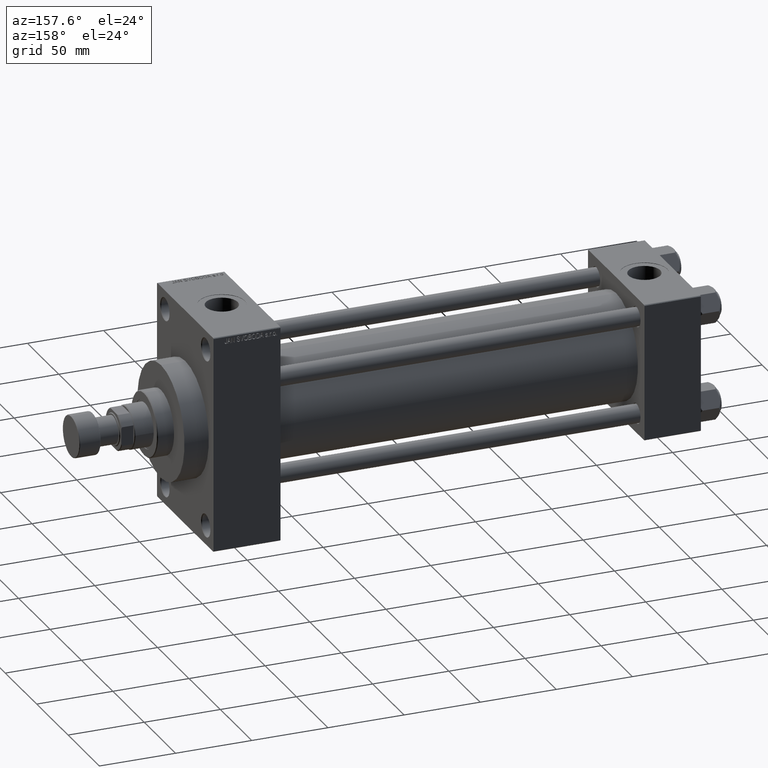
[diagram: clean part render]
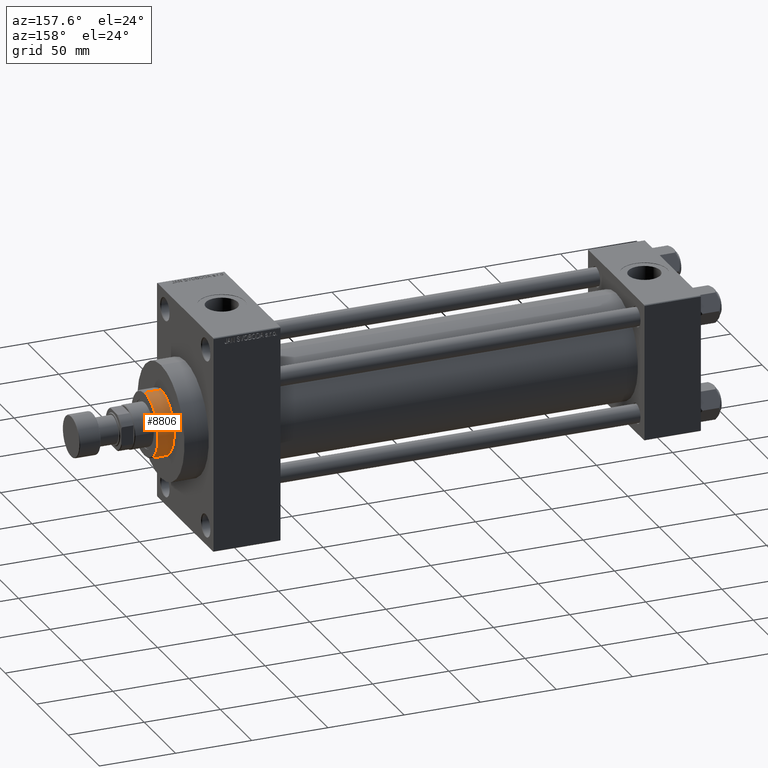
[diagram: same view with one face highlighted and labeled with its STEP entity id]
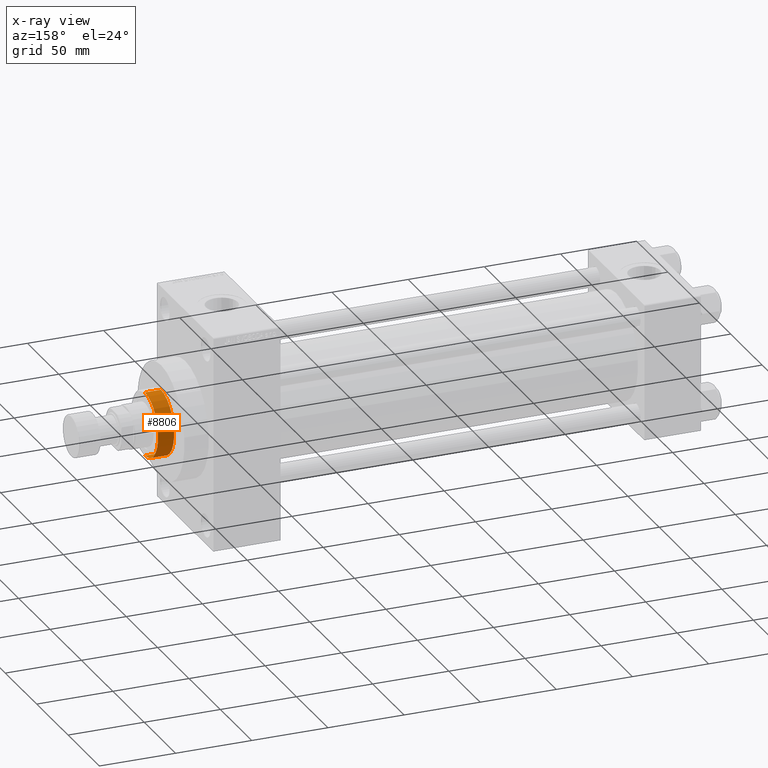
[diagram: x-ray of the same camera — body ghosted, the highlighted face saturated]
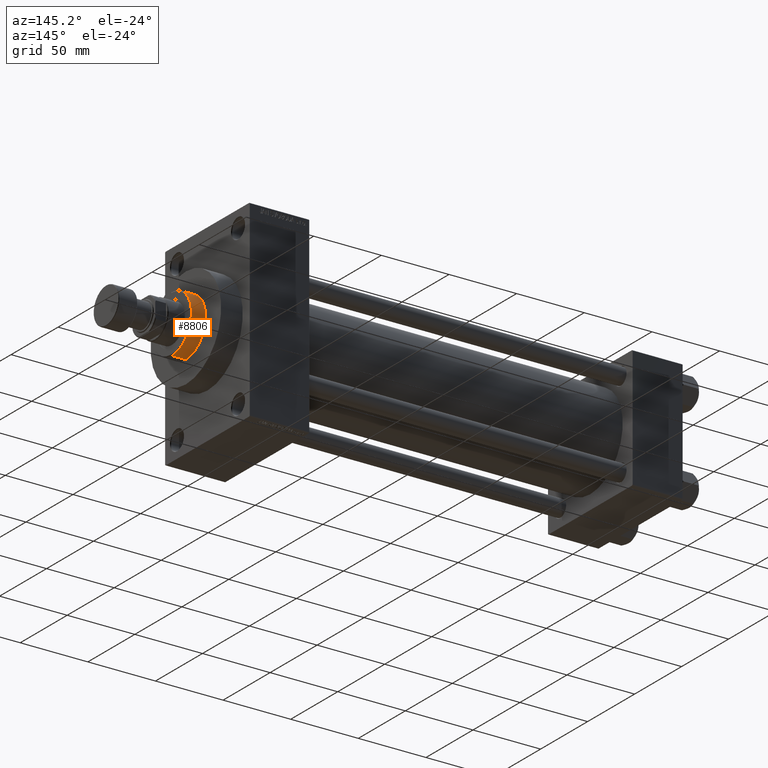
[diagram: same view with one face highlighted and labeled with its STEP entity id]
A machine part, auxiliary view. The second image highlights one B-rep face of the part: STEP entity #8806.
The next image is the same camera in x-ray: the body ghosted, the highlighted face saturated — about 0% of this face is hidden behind the body in this view.
A second angle (auxiliary view) of the same face is appended — the face is thin or edge-on in the first view.
In plain terms, the highlighted cylindrical surface (edge-blend (fillet) strip) has radius 21 mm, axis along (-1, 0, 0).
Its self-contained STEP definition (entity closure, byte-faithful):
#483 = VERTEX_POINT ( 'NONE', #29570 ) ;
#3964 = CARTESIAN_POINT ( 'NONE',  ( 0.000000000000000000, 0.000000000000000000, 54.26000000000000512 ) ) ;
#4712 = DIRECTION ( 'NONE',  ( 0.000000000000000000, 0.000000000000000000, 1.000000000000000000 ) ) ;
#4916 = CIRCLE ( 'NONE', #40352, 21.00000000000000000 ) ;
#7821 = VERTEX_POINT ( 'NONE', #13271 ) ;
#8806 = ADVANCED_FACE ( 'NONE', ( #30244 ), #22275, .T. ) ;
#9337 = EDGE_CURVE ( 'NONE', #24446, #7821, #22337, .T. ) ;
#9834 = CARTESIAN_POINT ( 'NONE',  ( -21.00000000000000000, 0.000000000000000000, 54.26000000000000512 ) ) ;
#10223 = AXIS2_PLACEMENT_3D ( 'NONE', #3964, #26130, #19138 ) ;
#10548 = CARTESIAN_POINT ( 'NONE',  ( 21.00000000000000000, 2.571758278209441661E-15, 54.26000000000000512 ) ) ;
#11950 = DIRECTION ( 'NONE',  ( 1.000000000000000000, 0.000000000000000000, 0.000000000000000000 ) ) ;
#13271 = CARTESIAN_POINT ( 'NONE',  ( 21.00000000000000000, 2.571758278209441661E-15, 43.25999999999999801 ) ) ;
#15709 = EDGE_CURVE ( 'NONE', #483, #7821, #4916, .T. ) ;
#19138 = DIRECTION ( 'NONE',  ( -1.000000000000000000, 0.000000000000000000, 0.000000000000000000 ) ) ;
#21151 = EDGE_LOOP ( 'NONE', ( #35900, #30055, #28327, #34806 ) ) ;
#22275 = CYLINDRICAL_SURFACE ( 'NONE', #10223, 21.00000000000000000 ) ;
#22337 = LINE ( 'NONE', #10548, #47206 ) ;
#22352 = CARTESIAN_POINT ( 'NONE',  ( 21.00000000000000000, 2.571758278209441661E-15, 53.76000000000001933 ) ) ;
#24446 = VERTEX_POINT ( 'NONE', #22352 ) ;
#25392 = EDGE_CURVE ( 'NONE', #40123, #483, #28401, .T. ) ;
#26130 = DIRECTION ( 'NONE',  ( -0.000000000000000000, -0.000000000000000000, -1.000000000000000000 ) ) ;
#26468 = DIRECTION ( 'NONE',  ( 1.000000000000000000, 0.000000000000000000, 0.000000000000000000 ) ) ;
#28327 = ORIENTED_EDGE ( 'NONE', *, *, #25392, .T. ) ;
#28401 = LINE ( 'NONE', #9834, #37073 ) ;
#29570 = CARTESIAN_POINT ( 'NONE',  ( -21.00000000000000000, 0.000000000000000000, 43.25999999999999801 ) ) ;
#30055 = ORIENTED_EDGE ( 'NONE', *, *, #34194, .T. ) ;
#30244 = FACE_OUTER_BOUND ( 'NONE', #21151, .T. ) ;
#33964 = DIRECTION ( 'NONE',  ( 0.000000000000000000, 0.000000000000000000, -1.000000000000000000 ) ) ;
#34194 = EDGE_CURVE ( 'NONE', #24446, #40123, #44235, .T. ) ;
#34806 = ORIENTED_EDGE ( 'NONE', *, *, #15709, .T. ) ;
#35900 = ORIENTED_EDGE ( 'NONE', *, *, #9337, .F. ) ;
#37073 = VECTOR ( 'NONE', #46251, 1000.000000000000000 ) ;
#38098 = AXIS2_PLACEMENT_3D ( 'NONE', #41666, #33964, #26468 ) ;
#38300 = CARTESIAN_POINT ( 'NONE',  ( -21.00000000000000000, 0.000000000000000000, 53.76000000000001933 ) ) ;
#40123 = VERTEX_POINT ( 'NONE', #38300 ) ;
#40352 = AXIS2_PLACEMENT_3D ( 'NONE', #44982, #4712, #11950 ) ;
#41666 = CARTESIAN_POINT ( 'NONE',  ( 0.000000000000000000, 0.000000000000000000, 53.76000000000001933 ) ) ;
#44052 = DIRECTION ( 'NONE',  ( -0.000000000000000000, -0.000000000000000000, -1.000000000000000000 ) ) ;
#44235 = CIRCLE ( 'NONE', #38098, 21.00000000000000000 ) ;
#44982 = CARTESIAN_POINT ( 'NONE',  ( 0.000000000000000000, 0.000000000000000000, 43.25999999999999801 ) ) ;
#46251 = DIRECTION ( 'NONE',  ( -0.000000000000000000, -0.000000000000000000, -1.000000000000000000 ) ) ;
#47206 = VECTOR ( 'NONE', #44052, 1000.000000000000000 ) ;